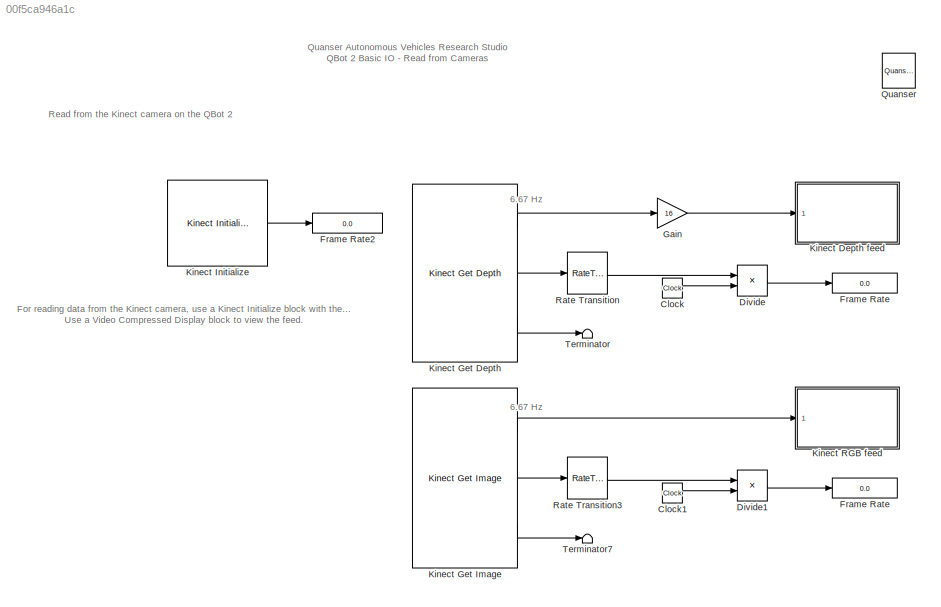
MODEL slx_00f5ca946a1c
KIND model
CONFIG AbsTol = auto
CONFIG EnableMultiTasking = on
CONFIG FixedStep = 0.01
CONFIG MaxStep = auto
CONFIG MinStep = auto
CONFIG RelTol = 1e-3
CONFIG SampleTimeConstraint = Unconstrained
CONFIG Solver = FixedStepDiscrete
CONFIG SolverName = FixedStepDiscrete
CONFIG StartTime = 0.0
CONFIG StopTime = inf
BLOCK [Display]  Frame Rate 
  Decimation = 20
  Ports = [1]
BLOCK [Clock] Clock
BLOCK [Clock] Clock1
BLOCK [Product] Divide
  InputSameDT = off
  Inputs = */
  OutDataTypeStr = Inherit: Inherit via internal rule
  Ports = [2, 1]
  RndMeth = Floor
  SaturateOnIntegerOverflow = off
BLOCK [Product] Divide1
  InputSameDT = off
  Inputs = */
  OutDataTypeStr = Inherit: Inherit via internal rule
  Ports = [2, 1]
  RndMeth = Floor
  SaturateOnIntegerOverflow = off
BLOCK [Display] Frame Rate
  Decimation = 20
  Ports = [1]
BLOCK [Display] Frame Rate2
  Decimation = 20
  Ports = [1]
BLOCK [Gain] Gain
  Gain = 16
  OutDataTypeStr = uint16
  ParamDataTypeStr = Inherit: Inherit via internal rule
  SaturateOnIntegerOverflow = off
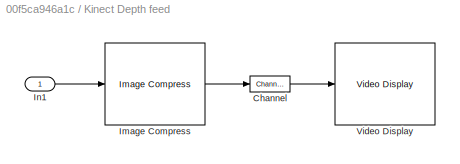
BLOCK [SubSystem] Kinect Depth feed
  CopyFcn = set_param(gcbh, 'UserData', gcb);\nset_param(gcbh, 'LinkStatus', 'none');
  LoadFcn = set_param(gcbh, 'UserData', gcb);
  NameChangeFcn = video_display_show([get_param(gcbh, 'UserData'), '/Video Display'], 'rename', [gcb, '/Video Display']);\nvideo_display_show([gcb, '/Video Display'], 'add', gcb);\nset_param(gcbh, 'UserData', gcb);
  OpenFcn = video_display_show([gcb, '/Video Display'], 'show', gcb);
  Ports = [1]
  PreDeleteFcn = video_display_show([gcb, '/Video Display'], 'delete');
  RequestExecContextInheritance = off
  StartFcn = video_display_show([gcb, '/Video Display'], 'add', gcb);
  UndoDeleteFcn = set_param(gcbh, 'UserData', gcb);
  Variant = off
BLOCK [Reference] Kinect Depth feed/Channel  REF=quarc_library/Signal Routing/Channel
  Ports = [1, 1]
  SourceBlock = quarc_library/Signal Routing/Channel
  SourceProductName = QUARC Targets
  SourceType = Channel
BLOCK [Reference] Kinect Depth feed/Image Compress  REF=quarc_library/Image Processing/Generic/Image Compress
  AttributesFormatString = (%<algorithm>)
  Ports = [1, 1]
  SourceBlock = quarc_library/Image Processing/Generic/Image Compress
  SourceProductName = QUARC Targets
  SourceType = Image Compress
BLOCK [Inport] Kinect Depth feed/In1
  IconDisplay = Port number
BLOCK [Reference] Kinect Depth feed/Video Display  REF=quarc_library/Multimedia/Video Display
  Ports = [1]
  SourceBlock = quarc_library/Multimedia/Video Display
  SourceProductName = QUARC Targets
  SourceType = Video Display
  Tag = Read_Cameras/Kinect Depth feed/Video Display
  UserDataPersistent = on
BLOCK [Reference] Kinect Get Depth  REF=quarc_library/Multimedia/Kinect Get Depth
  Ports = [0, 3]
  SourceBlock = quarc_library/Multimedia/Kinect Get Depth
  SourceProductName = QUARC Targets
  SourceType = Kinect Get Depth
BLOCK [Reference] Kinect Get Image  REF=quarc_library/Multimedia/Kinect Get Image
  Ports = [0, 3]
  SourceBlock = quarc_library/Multimedia/Kinect Get Image
  SourceProductName = QUARC Targets
  SourceType = Kinect Get Image
BLOCK [Reference] Kinect Initialize  REF=quarc_library/Multimedia/Kinect Initialize
  Ports = [0, 1]
  SourceBlock = quarc_library/Multimedia/Kinect Initialize
  SourceProductName = QUARC Targets
  SourceType = Kinect Initialize
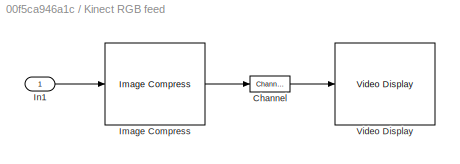
BLOCK [SubSystem] Kinect RGB feed
  CopyFcn = set_param(gcbh, 'UserData', gcb);\nset_param(gcbh, 'LinkStatus', 'none');
  LoadFcn = set_param(gcbh, 'UserData', gcb);
  NameChangeFcn = video_display_show([get_param(gcbh, 'UserData'), '/Video Display'], 'rename', [gcb, '/Video Display']);\nvideo_display_show([gcb, '/Video Display'], 'add', gcb);\nset_param(gcbh, 'UserData', gcb);
  OpenFcn = video_display_show([gcb, '/Video Display'], 'show', gcb);
  Ports = [1]
  PreDeleteFcn = video_display_show([gcb, '/Video Display'], 'delete');
  RequestExecContextInheritance = off
  StartFcn = video_display_show([gcb, '/Video Display'], 'add', gcb);
  UndoDeleteFcn = set_param(gcbh, 'UserData', gcb);
  Variant = off
BLOCK [Reference] Kinect RGB feed/Channel  REF=quarc_library/Signal Routing/Channel
  Ports = [1, 1]
  SourceBlock = quarc_library/Signal Routing/Channel
  SourceProductName = QUARC Targets
  SourceType = Channel
BLOCK [Reference] Kinect RGB feed/Image Compress  REF=quarc_library/Image Processing/Generic/Image Compress
  AttributesFormatString = (%<algorithm>)
  Ports = [1, 1]
  SourceBlock = quarc_library/Image Processing/Generic/Image Compress
  SourceProductName = QUARC Targets
  SourceType = Image Compress
BLOCK [Inport] Kinect RGB feed/In1
  IconDisplay = Port number
BLOCK [Reference] Kinect RGB feed/Video Display  REF=quarc_library/Multimedia/Video Display
  Ports = [1]
  SourceBlock = quarc_library/Multimedia/Video Display
  SourceProductName = QUARC Targets
  SourceType = Video Display
  Tag = Read_Cameras/Kinect RGB feed/Video Display
  UserDataPersistent = on
BLOCK [Reference] Quanser  REF=quarc_library/Logos/Quanser
  Ports = []
  SourceBlock = quarc_library/Logos/Quanser
  SourceProductName = QUARC Targets
  SourceType = Powered by Quanser
BLOCK [RateTransition] Rate Transition
BLOCK [RateTransition] Rate Transition3
BLOCK [Terminator] Terminator
BLOCK [Terminator] Terminator7
ANNOTATION (root): 6.67 Hz
ANNOTATION (root): Quanser Autonomous Vehicles Research Studio QBot 2 Basic IO - Read from Cameras
ANNOTATION (root): For reading data from the Kinect camera, use a Kinect Initialize block with the Device Identifier set to 0. Add Kinect Get Depth or Kinect Get Image blocks as required. Use a Video Compressed Display block to view the feed.
ANNOTATION (root): Read from the Kinect camera on the QBot 2
LINE Clock1:1 -> Divide1:2
LINE Clock:1 -> Divide:2
LINE Divide1:1 ->  Frame Rate :1
LINE Divide:1 -> Frame Rate:1
LINE Gain:1 -> Kinect Depth feed:1
LINE Kinect Get Depth:1 -> Gain:1
LINE Kinect Get Depth:2 -> Rate Transition:1
LINE Kinect Get Depth:3 -> Terminator:1
LINE Kinect Get Image:1 -> Kinect RGB feed:1
LINE Kinect Get Image:2 -> Rate Transition3:1
LINE Kinect Get Image:3 -> Terminator7:1
LINE Kinect Initialize:1 -> Frame Rate2:1
LINE Rate Transition3:1 -> Divide1:1
LINE Rate Transition:1 -> Divide:1
